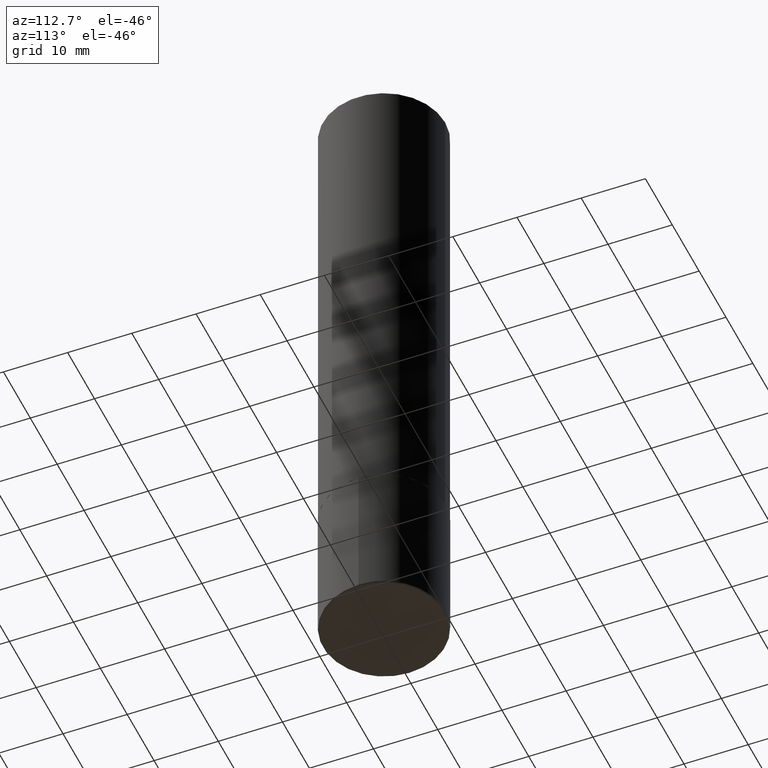
[diagram: clean part render]
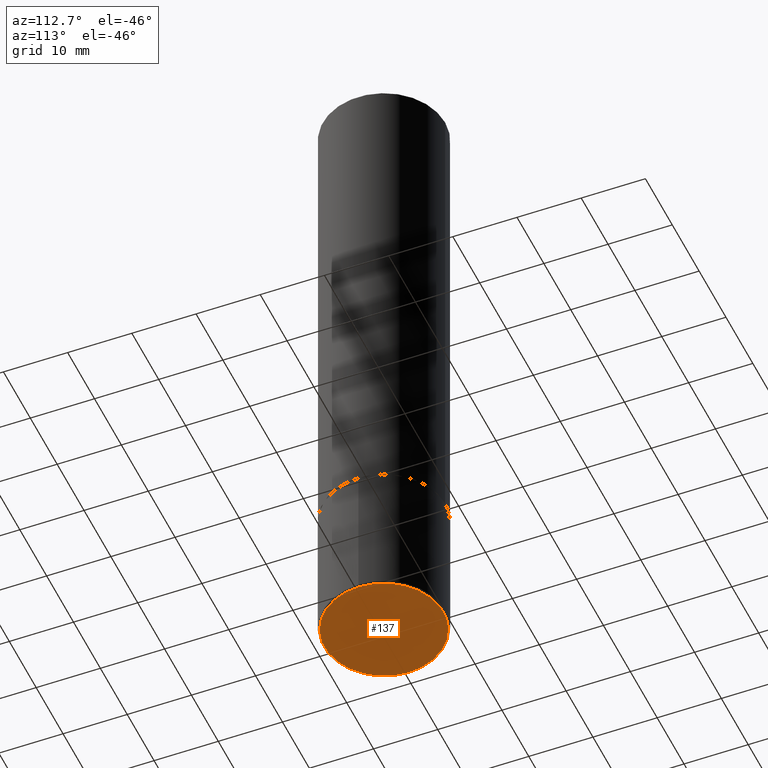
[diagram: same view with one face highlighted and labeled with its STEP entity id]
A machine part, auxiliary view. The second image highlights one B-rep face of the part: STEP entity #137.
In plain terms, the highlighted planar face has unit normal (0, -0, -1).
Its self-contained STEP definition (entity closure, byte-faithful):
#9 = DIRECTION ( 'NONE',  ( -1.000000000000000000, 6.982962677686265922E-15, -4.876176775795935793E-29 ) ) ;
#50 = VERTEX_POINT ( 'NONE', #141 ) ;
#77 = FACE_OUTER_BOUND ( 'NONE', #152, .T. ) ;
#93 = CARTESIAN_POINT ( 'NONE',  ( 0.3649999999999999356, -1.651470673272807063E-14, -4.000000000000000000 ) ) ;
#106 = PLANE ( 'NONE',  #398 ) ;
#121 = CIRCLE ( 'NONE', #402, 0.3649999999999999356 ) ;
#137 = ADVANCED_FACE ( 'NONE', ( #77 ), #106, .T. ) ;
#141 = CARTESIAN_POINT ( 'NONE',  ( -0.3649999999999999356, -1.131945982636599743E-14, -4.000000000000000000 ) ) ;
#152 = EDGE_LOOP ( 'NONE', ( #258, #395 ) ) ;
#161 = DIRECTION ( 'NONE',  ( -2.445468806185136597E-29, 3.491481338843145583E-15, 1.000000000000000000 ) ) ;
#164 = CARTESIAN_POINT ( 'NONE',  ( 9.781875224740546387E-29, -1.396592535537258233E-14, -4.000000000000000000 ) ) ;
#167 = DIRECTION ( 'NONE',  ( 1.000000000000000000, -6.982962677686267499E-15, 0.000000000000000000 ) ) ;
#184 = DIRECTION ( 'NONE',  ( 2.438088387897960049E-29, -3.491481338843145188E-15, -1.000000000000000000 ) ) ;
#185 = EDGE_CURVE ( 'NONE', #50, #248, #316, .T. ) ;
#212 = EDGE_CURVE ( 'NONE', #248, #50, #121, .T. ) ;
#220 = CARTESIAN_POINT ( 'NONE',  ( 9.781875224740546387E-29, -1.396592535537258233E-14, -4.000000000000000000 ) ) ;
#226 = CARTESIAN_POINT ( 'NONE',  ( 9.781875224740546387E-29, -1.396592535537258233E-14, -4.000000000000000000 ) ) ;
#248 = VERTEX_POINT ( 'NONE', #93 ) ;
#258 = ORIENTED_EDGE ( 'NONE', *, *, #212, .F. ) ;
#296 = AXIS2_PLACEMENT_3D ( 'NONE', #164, #161, #382 ) ;
#316 = CIRCLE ( 'NONE', #296, 0.3649999999999999356 ) ;
#328 = DIRECTION ( 'NONE',  ( -2.445468806185136597E-29, 3.491481338843145583E-15, 1.000000000000000000 ) ) ;
#382 = DIRECTION ( 'NONE',  ( 1.000000000000000000, -6.982962677686267499E-15, 0.000000000000000000 ) ) ;
#395 = ORIENTED_EDGE ( 'NONE', *, *, #185, .F. ) ;
#398 = AXIS2_PLACEMENT_3D ( 'NONE', #226, #184, #9 ) ;
#402 = AXIS2_PLACEMENT_3D ( 'NONE', #220, #328, #167 ) ;